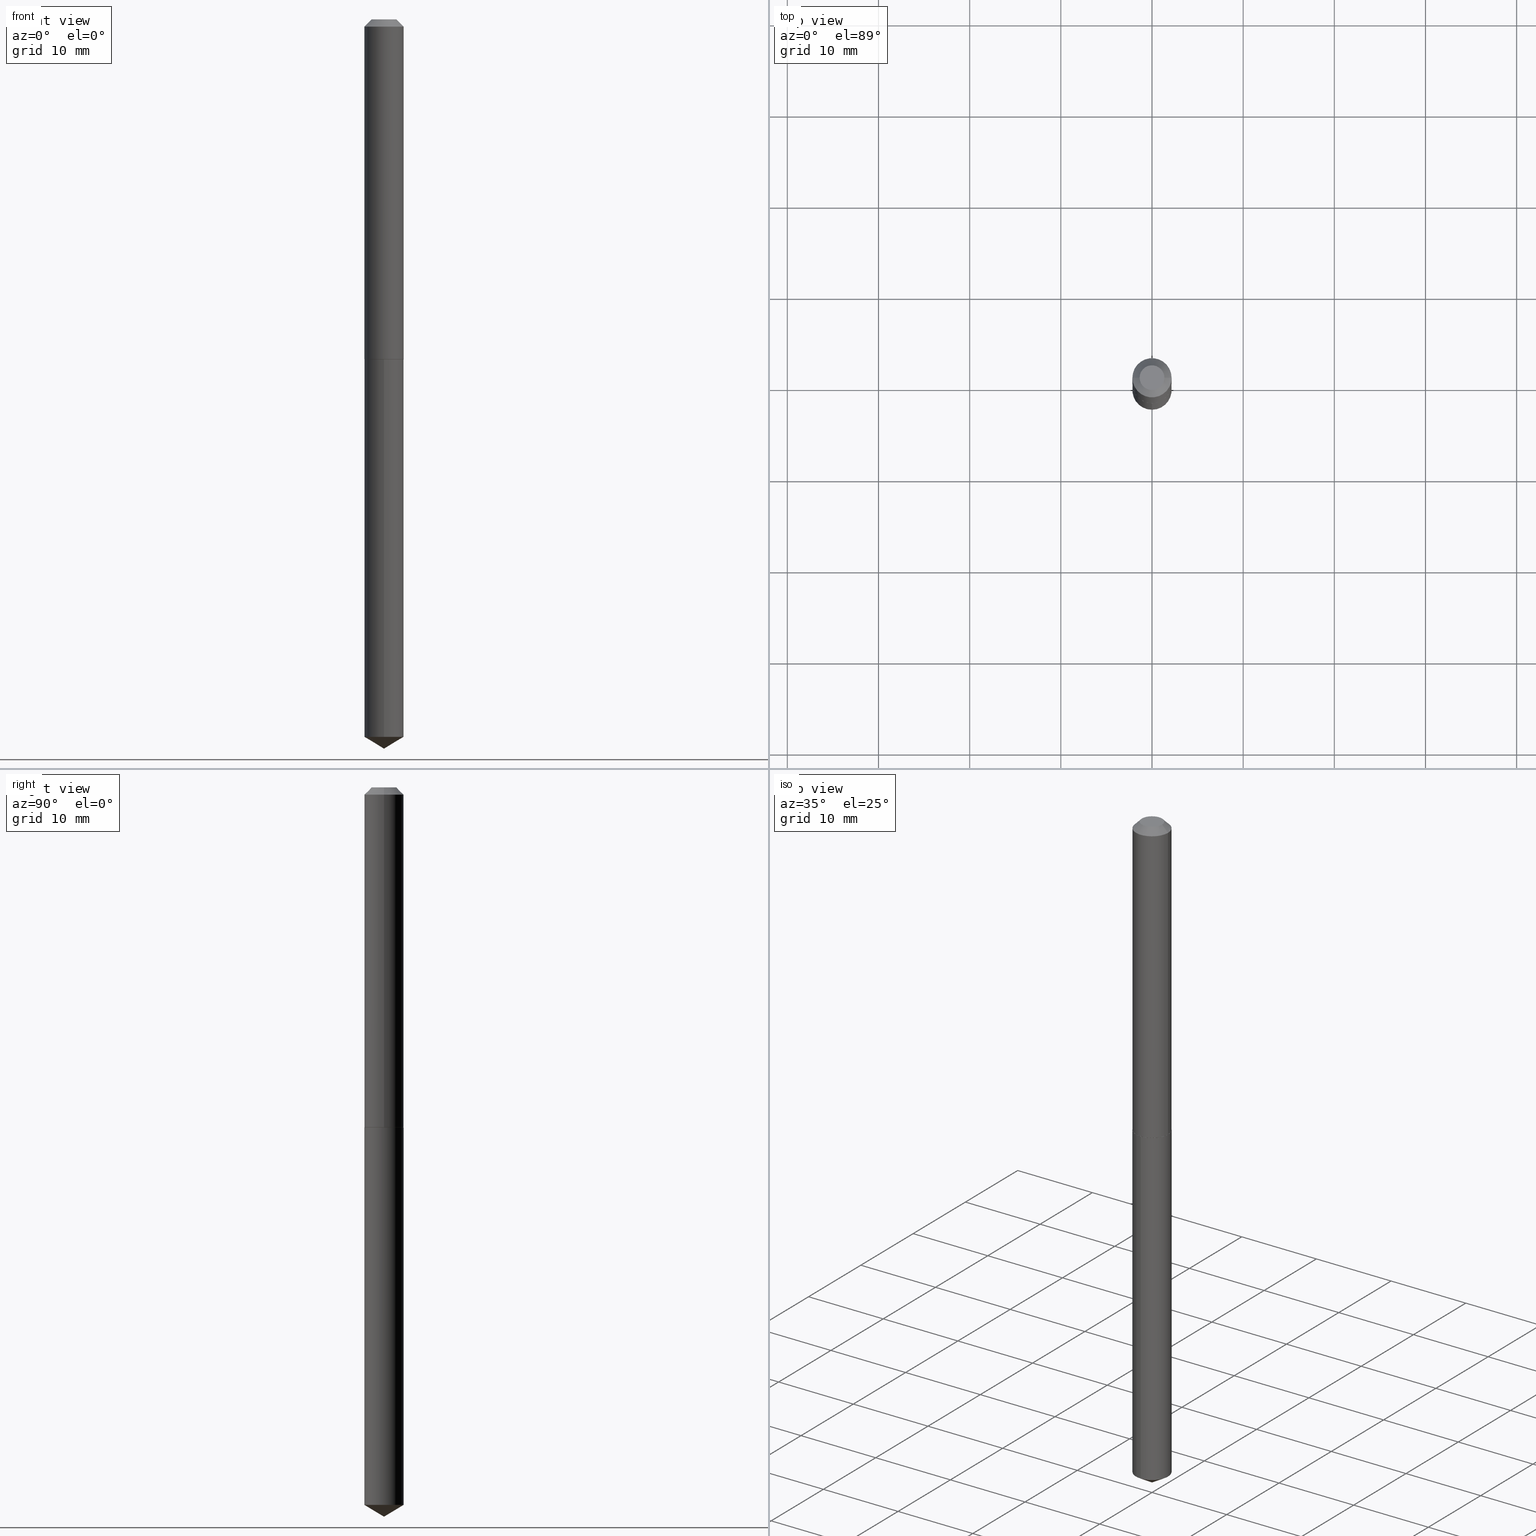
[diagram: canonical four-view strip — front | top / right | iso, engineering-drawing reading convention]
A machine part, canonical four-view strip (front | top / right | iso — engineering-drawing reading convention). The complete STEP part file that produces these views, byte-faithful:
ISO-10303-21;
HEADER;
FILE_DESCRIPTION (( 'STEP AP203' ),
    '1' );
FILE_NAME ('68320.STEP',
    '2024-04-23T13:05:01',
    ( '' ),
    ( '' ),
    'SwSTEP 2.0',
    'SolidWorks 2023',
    '' );
FILE_SCHEMA (( 'CONFIG_CONTROL_DESIGN' ));
ENDSEC;

DATA;
#1 = DATE_AND_TIME ( #124, #12 ) ;
#2 = ORIENTED_EDGE ( 'NONE', *, *, #281, .T. ) ;
#3 = APPROVAL_STATUS ( 'not_yet_approved' ) ;
#4 = ADVANCED_FACE ( 'NONE', ( #5 ), #241, .F. ) ;
#5 = FACE_OUTER_BOUND ( 'NONE', #39, .T. ) ;
#6 = PRODUCT_DEFINITION_SHAPE ( 'NONE', 'NONE',  #383 ) ;
#7 = ORIENTED_EDGE ( 'NONE', *, *, #226, .F. ) ;
#8 = DIRECTION ( 'NONE',  ( 2.438088387897960049E-29, -3.491481338843145188E-15, -1.000000000000000000 ) ) ;
#9 = DIRECTION ( 'NONE',  ( 2.445467556572017925E-29, -3.491483128360254707E-15, -1.000000000000000000 ) ) ;
#10 = CYLINDRICAL_SURFACE ( 'NONE', #354, 0.08465000000000011404 ) ;
#11 = AXIS2_PLACEMENT_3D ( 'NONE', #224, #194, #311 ) ;
#12 = LOCAL_TIME ( 9, 5, 1.000000000000000000, #268 ) ;
#13 = APPROVAL_ROLE ( '' ) ;
#14 = DIRECTION ( 'NONE',  ( 1.000000000000000000, -6.982962677686266711E-15, 0.000000000000000000 ) ) ;
#15 = DIRECTION ( 'NONE',  ( -2.445468806185136597E-29, 3.491481338843145583E-15, 1.000000000000000000 ) ) ;
#16 = EDGE_CURVE ( 'NONE', #93, #23, #86, .T. ) ;
#17 = DIRECTION ( 'NONE',  ( -2.445468806185136597E-29, 3.491481338843145583E-15, 1.000000000000000000 ) ) ;
#18 = APPROVAL_PERSON_ORGANIZATION ( #146, #38, #316 ) ;
#19 = DIRECTION ( 'NONE',  ( -6.982962677686265922E-15, -1.000000000000000000, 3.227227399485248397E-15 ) ) ;
#20 = EDGE_CURVE ( 'NONE', #183, #112, #276, .T. ) ;
#21 = DIRECTION ( 'NONE',  ( 1.000000000000000000, -6.982962677686266711E-15, 4.876167854615105113E-29 ) ) ;
#22 = LINE ( 'NONE', #82, #249 ) ;
#23 = VERTEX_POINT ( 'NONE', #218 ) ;
#24 = AXIS2_PLACEMENT_3D ( 'NONE', #80, #280, #310 ) ;
#25 = CARTESIAN_POINT ( 'NONE',  ( 7.642090019328602662E-31, -1.091087918388490267E-16, -0.03125000000000020817 ) ) ;
#26 = EDGE_LOOP ( 'NONE', ( #177, #110 ) ) ;
#27 = PERSON_AND_ORGANIZATION ( #168, #191 ) ;
#28 = EDGE_CURVE ( 'NONE', #232, #60, #148, .T. ) ;
#29 = ORIENTED_EDGE ( 'NONE', *, *, #20, .F. ) ;
#30 =( NAMED_UNIT ( * ) PLANE_ANGLE_UNIT ( ) SI_UNIT ( $, .RADIAN. ) );
#31 = ORIENTED_EDGE ( 'NONE', *, *, #48, .T. ) ;
#32 = ADVANCED_FACE ( 'NONE', ( #95 ), #303, .T. ) ;
#33 = AXIS2_PLACEMENT_3D ( 'NONE', #100, #273, #222 ) ;
#34 = LOCAL_TIME ( 9, 5, 1.000000000000000000, #35 ) ;
#35 = COORDINATED_UNIVERSAL_TIME_OFFSET ( 5, 0, .BEHIND. ) ;
#36 = EDGE_LOOP ( 'NONE', ( #153, #92, #175 ) ) ;
#37 = EDGE_LOOP ( 'NONE', ( #307, #353, #345, #267 ) ) ;
#38 = APPROVAL ( #109, 'UNSPECIFIED' ) ;
#39 = EDGE_LOOP ( 'NONE', ( #69, #90 ) ) ;
#40 = CLOSED_SHELL ( 'NONE', ( #32, #314, #262, #287, #89 ) ) ;
#41 = AXIS2_PLACEMENT_3D ( 'NONE', #369, #329, #59 ) ;
#42 = FACE_OUTER_BOUND ( 'NONE', #67, .T. ) ;
#43 = DIRECTION ( 'NONE',  ( 1.000000000000000000, -6.982962677686266711E-15, 0.000000000000000000 ) ) ;
#44 = DIRECTION ( 'NONE',  ( -2.445468806185136597E-29, 3.491481338843145583E-15, 1.000000000000000000 ) ) ;
#45 = CARTESIAN_POINT ( 'NONE',  ( -0.08415000000000039115, -4.526669406774923587E-15, -1.468500000000000361 ) ) ;
#46 = VECTOR ( 'NONE', #252, 39.37007874015748143 ) ;
#47 = CALENDAR_DATE ( 2024, 23, 4 ) ;
#48 = EDGE_CURVE ( 'NONE', #60, #232, #103, .T. ) ;
#49 = CARTESIAN_POINT ( 'NONE',  ( 3.591170941882874097E-29, -5.127240346091160296E-15, -1.468500000000000361 ) ) ;
#50 = CARTESIAN_POINT ( 'NONE',  ( -0.08465000000000018343, -4.524020179600813175E-15, -1.468000000000000194 ) ) ;
#51 = CC_DESIGN_DATE_AND_TIME_ASSIGNMENT ( #368, #366, ( #213 ) ) ;
#52 = FACE_OUTER_BOUND ( 'NONE', #323, .T. ) ;
#53 = CIRCLE ( 'NONE', #11, 0.08465000000000001690 ) ;
#54 = DIRECTION ( 'NONE',  ( -2.445467556572018485E-29, 3.491483128360254312E-15, 1.000000000000000000 ) ) ;
#55 = DIRECTION ( 'NONE',  ( -2.445468806185136597E-29, 3.491481338843145583E-15, 1.000000000000000000 ) ) ;
#56 = MANIFOLD_SOLID_BREP ( 'Body-Move/Copy2[2]', #370 ) ;
#57 = LINE ( 'NONE', #171, #46 ) ;
#58 = CC_DESIGN_SECURITY_CLASSIFICATION ( #213, ( #134 ) ) ;
#59 = DIRECTION ( 'NONE',  ( 1.000000000000000000, -6.982962677686266711E-15, 0.000000000000000000 ) ) ;
#60 = VERTEX_POINT ( 'NONE', #98 ) ;
#61 = PERSON_AND_ORGANIZATION_ROLE ( 'creator' ) ;
#62 = ORIENTED_EDGE ( 'NONE', *, *, #362, .F. ) ;
#63 = ORIENTED_EDGE ( 'NONE', *, *, #182, .T. ) ;
#64 = AXIS2_PLACEMENT_3D ( 'NONE', #360, #15, #156 ) ;
#65 = AXIS2_PLACEMENT_3D ( 'NONE', #25, #344, #202 ) ;
#66 = LINE ( 'NONE', #210, #166 ) ;
#67 = EDGE_LOOP ( 'NONE', ( #299, #352, #234, #180 ) ) ;
#68 = ADVANCED_FACE ( 'NONE', ( #189 ), #10, .T. ) ;
#69 = ORIENTED_EDGE ( 'NONE', *, *, #145, .F. ) ;
#70 = DIRECTION ( 'NONE',  ( 1.000000000000000000, -6.982962677686266711E-15, 0.000000000000000000 ) ) ;
#71 = EDGE_CURVE ( 'NONE', #211, #232, #277, .T. ) ;
#72 = CARTESIAN_POINT ( 'NONE',  ( 7.642090019328602662E-31, -1.091087918388490267E-16, -0.03125000000000020817 ) ) ;
#73 = DIRECTION ( 'NONE',  ( 1.000000000000000000, -6.982962677686266711E-15, 4.876176775795935232E-29 ) ) ;
#74 = CARTESIAN_POINT ( 'NONE',  ( 3.591170941882873536E-29, -5.127240346091159508E-15, -1.468500000000000139 ) ) ;
#75 = CARTESIAN_POINT ( 'NONE',  ( 0.08465000000000018343, -5.716602396087882778E-15, -1.468000000000000194 ) ) ;
#76 = AXIS2_PLACEMENT_3D ( 'NONE', #74, #9, #128 ) ;
#77 = AXIS2_PLACEMENT_3D ( 'NONE', #306, #133, #81 ) ;
#78 = LINE ( 'NONE', #163, #341 ) ;
#79 = EDGE_CURVE ( 'NONE', #83, #183, #309, .T. ) ;
#80 = CARTESIAN_POINT ( 'NONE',  ( 3.591170941882873536E-29, -5.127240346091159508E-15, -1.468500000000000139 ) ) ;
#81 = DIRECTION ( 'NONE',  ( -6.982962677686266711E-15, -1.000000000000000000, 3.468864327941613936E-15 ) ) ;
#82 = CARTESIAN_POINT ( 'NONE',  ( 6.014744258209607220E-16, 0.08464999999999488212, -1.468500000000000361 ) ) ;
#83 = VERTEX_POINT ( 'NONE', #216 ) ;
#84 = CARTESIAN_POINT ( 'NONE',  ( -5.839929314523221596E-48, 8.337871319499149181E-34, 2.388061258337353400E-19 ) ) ;
#85 = ORIENTED_EDGE ( 'NONE', *, *, #16, .T. ) ;
#86 = CIRCLE ( 'NONE', #64, 0.05340000000000000996 ) ;
#87 =( LENGTH_UNIT ( ) NAMED_UNIT ( * ) SI_UNIT ( $, .METRE. ) );
#88 = VERTEX_POINT ( 'NONE', #45 ) ;
#89 = ADVANCED_FACE ( 'NONE', ( #331 ), #274, .F. ) ;
#90 = ORIENTED_EDGE ( 'NONE', *, *, #174, .F. ) ;
#91 = LENGTH_MEASURE_WITH_UNIT ( LENGTH_MEASURE( 0.02539999999999999897 ), #87 );
#92 = ORIENTED_EDGE ( 'NONE', *, *, #200, .T. ) ;
#93 = VERTEX_POINT ( 'NONE', #327 ) ;
#94 = DIRECTION ( 'NONE',  ( -2.445467556572018485E-29, 3.491483128360254312E-15, 1.000000000000000000 ) ) ;
#95 = FACE_OUTER_BOUND ( 'NONE', #317, .T. ) ;
#96 = AXIS2_PLACEMENT_3D ( 'NONE', #221, #184, #14 ) ;
#97 = CARTESIAN_POINT ( 'NONE',  ( 0.000000000000000000, 0.000000000000000000, 0.000000000000000000 ) ) ;
#98 = CARTESIAN_POINT ( 'NONE',  ( -0.08465000000000003078, -2.015827272809367540E-15, -0.03125000000000020817 ) ) ;
#99 = SHAPE_DEFINITION_REPRESENTATION ( #6, #320 ) ;
#100 = CARTESIAN_POINT ( 'NONE',  ( 3.591170941882874097E-29, -5.127240346091160296E-15, -1.468500000000000361 ) ) ;
#101 = CC_DESIGN_DATE_AND_TIME_ASSIGNMENT ( #208, #141, ( #383 ) ) ;
#102 = FACE_OUTER_BOUND ( 'NONE', #36, .T. ) ;
#103 = CIRCLE ( 'NONE', #96, 0.08465000000000003078 ) ;
#104 = CYLINDRICAL_SURFACE ( 'NONE', #334, 0.08465000000000001690 ) ;
#105 = DIRECTION ( 'NONE',  ( -2.445467556572018485E-29, 3.491483128360254707E-15, 1.000000000000000000 ) ) ;
#106 = CARTESIAN_POINT ( 'NONE',  ( -0.08465000000000003078, 4.819989988272936028E-16, -0.03125000000000020817 ) ) ;
#107 = VECTOR ( 'NONE', #123, 39.37007874015748854 ) ;
#108 = FACE_OUTER_BOUND ( 'NONE', #272, .T. ) ;
#109 = APPROVAL_STATUS ( 'not_yet_approved' ) ;
#110 = ORIENTED_EDGE ( 'NONE', *, *, #240, .T. ) ;
#111 = DATE_AND_TIME ( #238, #34 ) ;
#112 = VERTEX_POINT ( 'NONE', #125 ) ;
#113 = AXIS2_PLACEMENT_3D ( 'NONE', #49, #44, #358 ) ;
#114 = CIRCLE ( 'NONE', #41, 0.08465000000000018343 ) ;
#115 = ADVANCED_FACE ( 'NONE', ( #132 ), #160, .F. ) ;
#116 = PERSON_AND_ORGANIZATION_ROLE ( 'classification_officer' ) ;
#117 = ORIENTED_EDGE ( 'NONE', *, *, #281, .F. ) ;
#118 = PERSON_AND_ORGANIZATION_ROLE ( 'creator' ) ;
#119 = ORIENTED_EDGE ( 'NONE', *, *, #28, .T. ) ;
#120 = EDGE_LOOP ( 'NONE', ( #2, #85 ) ) ;
#121 = CIRCLE ( 'NONE', #348, 0.08465000000000018343 ) ;
#122 = ORIENTED_EDGE ( 'NONE', *, *, #48, .F. ) ;
#123 = DIRECTION ( 'NONE',  ( 6.090539988449770547E-15, 0.8571673007021127777, 0.5150380749100531563 ) ) ;
#124 = CALENDAR_DATE ( 2024, 23, 4 ) ;
#125 = CARTESIAN_POINT ( 'NONE',  ( -5.911077906661066131E-16, -0.08465000000000513780, -1.468499999999999917 ) ) ;
#126 = EDGE_CURVE ( 'NONE', #239, #211, #251, .T. ) ;
#127 = AXIS2_PLACEMENT_3D ( 'NONE', #201, #256, #313 ) ;
#128 = DIRECTION ( 'NONE',  ( 6.982962677686265922E-15, 1.000000000000000000, -3.491483128360254707E-15 ) ) ;
#129 = DATE_AND_TIME ( #47, #199 ) ;
#130 = DIRECTION ( 'NONE',  ( -1.000000000000000000, 6.982962677686265922E-15, -4.876176775795935793E-29 ) ) ;
#131 = PERSON_AND_ORGANIZATION ( #168, #191 ) ;
#132 = FACE_OUTER_BOUND ( 'NONE', #120, .T. ) ;
#133 = DIRECTION ( 'NONE',  ( -2.445467556572018485E-29, 3.491483128360254312E-15, 1.000000000000000000 ) ) ;
#134 = PRODUCT_DEFINITION_FORMATION_WITH_SPECIFIED_SOURCE ( 'ANY', '', #215, .NOT_KNOWN. ) ;
#135 = FACE_OUTER_BOUND ( 'NONE', #375, .T. ) ;
#136 = DIRECTION ( 'NONE',  ( -2.445467556572018485E-29, 3.491483128360254312E-15, 1.000000000000000000 ) ) ;
#137 = CARTESIAN_POINT ( 'NONE',  ( 0.08465000000000018343, -5.716602396087882778E-15, -1.468000000000000194 ) ) ;
#138 = VECTOR ( 'NONE', #337, 39.37007874015748854 ) ;
#139 = ORIENTED_EDGE ( 'NONE', *, *, #126, .F. ) ;
#140 = CONICAL_SURFACE ( 'NONE', #127, 65.52281426576806211, 1.029744258676652091 ) ;
#141 = DATE_TIME_ROLE ( 'creation_date' ) ;
#142 = CC_DESIGN_PERSON_AND_ORGANIZATION_ASSIGNMENT ( #349, #61, ( #134 ) ) ;
#143 = APPROVAL_DATE_TIME ( #111, #38 ) ;
#144 = ORIENTED_EDGE ( 'NONE', *, *, #347, .F. ) ;
#145 = EDGE_CURVE ( 'NONE', #239, #88, #333, .T. ) ;
#146 = PERSON_AND_ORGANIZATION ( #168, #191 ) ;
#147 = ORIENTED_EDGE ( 'NONE', *, *, #71, .T. ) ;
#148 = CIRCLE ( 'NONE', #295, 0.08465000000000003078 ) ;
#149 = CC_DESIGN_APPROVAL ( #38, ( #134 ) ) ;
#150 = PERSON_AND_ORGANIZATION ( #168, #191 ) ;
#151 = EDGE_LOOP ( 'NONE', ( #390, #152, #119, #144 ) ) ;
#152 = ORIENTED_EDGE ( 'NONE', *, *, #376, .T. ) ;
#153 = ORIENTED_EDGE ( 'NONE', *, *, #182, .F. ) ;
#154 = AXIS2_PLACEMENT_3D ( 'NONE', #302, #8, #130 ) ;
#155 = AXIS2_PLACEMENT_3D ( 'NONE', #384, #361, #297 ) ;
#156 = DIRECTION ( 'NONE',  ( 1.000000000000000000, -6.982962677686266711E-15, 4.876167854615105113E-29 ) ) ;
#157 = DIRECTION ( 'NONE',  ( -2.445468806185136877E-29, 3.491481338843145188E-15, 1.000000000000000000 ) ) ;
#158 = ADVANCED_FACE ( 'NONE', ( #42 ), #185, .T. ) ;
#159 = APPROVAL_DATE_TIME ( #129, #173 ) ;
#160 = PLANE ( 'NONE',  #154 ) ;
#161 = DIRECTION ( 'NONE',  ( -2.445468806185136597E-29, 3.491481338843145583E-15, 1.000000000000000000 ) ) ;
#162 = CARTESIAN_POINT ( 'NONE',  ( 7.702248318475522533E-29, -1.099677000527170954E-14, -3.149600000000000399 ) ) ;
#163 = CARTESIAN_POINT ( 'NONE',  ( -0.08465000000000018343, -4.524020179600813175E-15, -1.468000000000000194 ) ) ;
#164 = AXIS2_PLACEMENT_3D ( 'NONE', #190, #161, #70 ) ;
#165 = DIRECTION ( 'NONE',  ( -2.445468806185136597E-29, 3.491481338843145583E-15, 1.000000000000000000 ) ) ;
#166 = VECTOR ( 'NONE', #204, 39.37007874015748143 ) ;
#167 = DIRECTION ( 'NONE',  ( 1.000000000000000000, -6.982962677686266711E-15, 0.000000000000000000 ) ) ;
#168 = PERSON ( 'UNSPECIFIED', 'UNSPECIFIED', 'UNSPECIFIED', ('UNSPECIFIED'), ('UNSPECIFIED'), ('UNSPECIFIED') ) ;
#169 = ADVANCED_FACE ( 'NONE', ( #250 ), #242, .T. ) ;
#170 = CARTESIAN_POINT ( 'NONE',  ( 0.08415000000000039115, -5.714856655418462852E-15, -1.468500000000000361 ) ) ;
#171 = CARTESIAN_POINT ( 'NONE',  ( -0.08465000000000011404, 6.014744258209256177E-16, -4.163878553900783461E-30 ) ) ;
#172 = CIRCLE ( 'NONE', #24, 0.08465000000000001690 ) ;
#173 = APPROVAL ( #377, 'UNSPECIFIED' ) ;
#174 = EDGE_CURVE ( 'NONE', #88, #239, #328, .T. ) ;
#175 = ORIENTED_EDGE ( 'NONE', *, *, #79, .F. ) ;
#176 = PERSON_AND_ORGANIZATION_ROLE ( 'design_supplier' ) ;
#177 = ORIENTED_EDGE ( 'NONE', *, *, #226, .T. ) ;
#178 = ORIENTED_EDGE ( 'NONE', *, *, #193, .T. ) ;
#179 = AXIS2_PLACEMENT_3D ( 'NONE', #308, #54, #227 ) ;
#180 = ORIENTED_EDGE ( 'NONE', *, *, #336, .F. ) ;
#181 = MANIFOLD_SOLID_BREP ( 'Body-Move/Copy2[1]', #40 ) ;
#182 = EDGE_CURVE ( 'NONE', #298, #83, #192, .T. ) ;
#183 = VERTEX_POINT ( 'NONE', #254 ) ;
#184 = DIRECTION ( 'NONE',  ( -2.445468806185136597E-29, 3.491481338843145583E-15, 1.000000000000000000 ) ) ;
#185 = CONICAL_SURFACE ( 'NONE', #164, 0.08465000000000018343, 0.7853981633970726906 ) ;
#186 = DIRECTION ( 'NONE',  ( -2.445467556572018485E-29, 3.491483128360254312E-15, 1.000000000000000000 ) ) ;
#187 = ADVANCED_FACE ( 'NONE', ( #135 ), #248, .T. ) ;
#188 = APPROVAL_ROLE ( '' ) ;
#189 = FACE_OUTER_BOUND ( 'NONE', #264, .T. ) ;
#190 = CARTESIAN_POINT ( 'NONE',  ( 3.589948207479781295E-29, -5.125494605421738793E-15, -1.468000000000000194 ) ) ;
#191 = ORGANIZATION ( 'UNSPECIFIED', 'UNSPECIFIED', '' ) ;
#192 = LINE ( 'NONE', #162, #107 ) ;
#193 = EDGE_CURVE ( 'NONE', #88, #244, #78, .T. ) ;
#194 = DIRECTION ( 'NONE',  ( -2.445467556572018485E-29, 3.491483128360254312E-15, 1.000000000000000000 ) ) ;
#195 = ORIENTED_EDGE ( 'NONE', *, *, #325, .T. ) ;
#196 = CARTESIAN_POINT ( 'NONE',  ( 7.702244616179229741E-29, -1.099677526108345830E-14, -3.149600000000000399 ) ) ;
#197 = AXIS2_PLACEMENT_3D ( 'NONE', #365, #326, #367 ) ;
#198 = CARTESIAN_POINT ( 'NONE',  ( 3.589948207479781295E-29, -5.125494605421738793E-15, -1.468000000000000194 ) ) ;
#199 = LOCAL_TIME ( 9, 5, 1.000000000000000000, #373 ) ;
#200 = EDGE_CURVE ( 'NONE', #298, #183, #257, .T. ) ;
#201 = CARTESIAN_POINT ( 'NONE',  ( -8.857600380750479720E-28, 1.264631930502970118E-13, 36.22047874015748192 ) ) ;
#202 = DIRECTION ( 'NONE',  ( -1.000000000000000000, 6.982962677686266711E-15, 0.000000000000000000 ) ) ;
#203 = PRODUCT_RELATED_PRODUCT_CATEGORY ( 'detail', '', ( #215 ) ) ;
#204 = DIRECTION ( 'NONE',  ( 0.7071067811865453523, -7.319954787623248157E-15, -0.7071067811865496822 ) ) ;
#205 = VECTOR ( 'NONE', #220, 39.37007874015748854 ) ;
#206 = ORIENTED_EDGE ( 'NONE', *, *, #371, .T. ) ;
#207 = LOCAL_TIME ( 9, 5, 1.000000000000000000, #246 ) ;
#208 = DATE_AND_TIME ( #233, #207 ) ;
#209 = ORIENTED_EDGE ( 'NONE', *, *, #145, .T. ) ;
#210 = CARTESIAN_POINT ( 'NONE',  ( 0.08465000000000003078, -6.898499473502093829E-16, -0.03125000000000020817 ) ) ;
#211 = VERTEX_POINT ( 'NONE', #137 ) ;
#212 = ORIENTED_EDGE ( 'NONE', *, *, #371, .F. ) ;
#213 = SECURITY_CLASSIFICATION ( '', '', #291 ) ;
#214 = DIRECTION ( 'NONE',  ( -2.438088387897960049E-29, 3.491481338843145188E-15, 1.000000000000000000 ) ) ;
#215 = PRODUCT ( '68320', '68320', '', ( #322 ) ) ;
#216 = CARTESIAN_POINT ( 'NONE',  ( 6.014744258210007567E-16, 0.08464999999998920610, -3.098737148599317592 ) ) ;
#217 = EDGE_CURVE ( 'NONE', #183, #83, #380, .T. ) ;
#218 = CARTESIAN_POINT ( 'NONE',  ( -0.05340000000000000996, 4.274446029078701372E-16, 2.388061258309370119E-19 ) ) ;
#219 = APPROVAL_PERSON_ORGANIZATION ( #265, #278, #188 ) ;
#220 = DIRECTION ( 'NONE',  ( 0.7071067811862817853, -2.468850131079474354E-15, 0.7071067811868130271 ) ) ;
#221 = CARTESIAN_POINT ( 'NONE',  ( 7.642090019328602662E-31, -1.091087918388490267E-16, -0.03125000000000020817 ) ) ;
#222 = DIRECTION ( 'NONE',  ( 1.000000000000000000, -6.982962677686266711E-15, 0.000000000000000000 ) ) ;
#223 = APPROVAL_PERSON_ORGANIZATION ( #131, #173, #13 ) ;
#224 = CARTESIAN_POINT ( 'NONE',  ( 3.591170941882873536E-29, -5.127240346091159508E-15, -1.468500000000000139 ) ) ;
#225 = CARTESIAN_POINT ( 'NONE',  ( 3.591170941882873536E-29, -5.127240346091159508E-15, -1.468500000000000139 ) ) ;
#226 = EDGE_CURVE ( 'NONE', #112, #321, #53, .T. ) ;
#227 = DIRECTION ( 'NONE',  ( -6.982962677686265922E-15, -1.000000000000000000, 6.454454798970496795E-15 ) ) ;
#228 = DIRECTION ( 'NONE',  ( -0.7071067811865453523, 2.468850131082234184E-15, -0.7071067811865496822 ) ) ;
#229 = CC_DESIGN_APPROVAL ( #173, ( #213 ) ) ;
#230 = FACE_OUTER_BOUND ( 'NONE', #237, .T. ) ;
#231 = APPROVAL_DATE_TIME ( #1, #278 ) ;
#232 = VERTEX_POINT ( 'NONE', #382 ) ;
#233 = CALENDAR_DATE ( 2024, 23, 4 ) ;
#234 = ORIENTED_EDGE ( 'NONE', *, *, #126, .T. ) ;
#235 = COORDINATED_UNIVERSAL_TIME_OFFSET ( 5, 0, .BEHIND. ) ;
#236 = DIMENSIONAL_EXPONENTS ( 1.000000000000000000, 0.000000000000000000, 0.000000000000000000, 0.000000000000000000, 0.000000000000000000, 0.000000000000000000, 0.000000000000000000 ) ;
#237 = EDGE_LOOP ( 'NONE', ( #387, #117, #296, #31 ) ) ;
#238 = CALENDAR_DATE ( 2024, 23, 4 ) ;
#239 = VERTEX_POINT ( 'NONE', #170 ) ;
#240 = EDGE_CURVE ( 'NONE', #321, #112, #172, .T. ) ;
#241 = PLANE ( 'NONE',  #346 ) ;
#242 = CONICAL_SURFACE ( 'NONE', #197, 0.08465000000000003078, 0.7853981633974452814 ) ;
#243 = AXIS2_PLACEMENT_3D ( 'NONE', #84, #374, #21 ) ;
#244 = VERTEX_POINT ( 'NONE', #50 ) ;
#245 = DIRECTION ( 'NONE',  ( -6.982962677686265922E-15, -1.000000000000000000, 3.227227399485248397E-15 ) ) ;
#246 = COORDINATED_UNIVERSAL_TIME_OFFSET ( 5, 0, .BEHIND. ) ;
#247 = DIRECTION ( 'NONE',  ( -2.445467556572018485E-29, 3.491483128360254707E-15, 1.000000000000000000 ) ) ;
#248 = CONICAL_SURFACE ( 'NONE', #286, 0.08465000000000018343, 0.7853981633970726906 ) ;
#249 = VECTOR ( 'NONE', #105, 39.37007874015748143 ) ;
#250 = FACE_OUTER_BOUND ( 'NONE', #151, .T. ) ;
#251 = LINE ( 'NONE', #75, #205 ) ;
#252 = DIRECTION ( 'NONE',  ( -2.445468806185136877E-29, 3.491481338843145188E-15, 1.000000000000000000 ) ) ;
#253 = AXIS2_PLACEMENT_3D ( 'NONE', #305, #186, #301 ) ;
#254 = CARTESIAN_POINT ( 'NONE',  ( -5.911077906660666770E-16, -0.08465000000001084157, -3.098737148599316260 ) ) ;
#255 = ADVANCED_FACE ( 'NONE', ( #108 ), #284, .T. ) ;
#256 = DIRECTION ( 'NONE',  ( -2.445467556572018485E-29, 3.491483128360254312E-15, 1.000000000000000000 ) ) ;
#257 = LINE ( 'NONE', #283, #138 ) ;
#258 = VECTOR ( 'NONE', #247, 39.37007874015748143 ) ;
#259 = DIRECTION ( 'NONE',  ( 1.000000000000000000, -6.982962677686266711E-15, 0.000000000000000000 ) ) ;
#260 = CC_DESIGN_APPROVAL ( #278, ( #383 ) ) ;
#261 =( CONVERSION_BASED_UNIT ( 'INCH', #91 ) LENGTH_UNIT ( ) NAMED_UNIT ( #236 ) );
#262 = ADVANCED_FACE ( 'NONE', ( #102 ), #304, .T. ) ;
#263 = PERSON_AND_ORGANIZATION ( #168, #191 ) ;
#264 = EDGE_LOOP ( 'NONE', ( #206, #290, #292, #385 ) ) ;
#265 = PERSON_AND_ORGANIZATION ( #168, #191 ) ;
#266 = CIRCLE ( 'NONE', #243, 0.05340000000000000996 ) ;
#267 = ORIENTED_EDGE ( 'NONE', *, *, #240, .F. ) ;
#268 = COORDINATED_UNIVERSAL_TIME_OFFSET ( 5, 0, .BEHIND. ) ;
#269 = ORIENTED_EDGE ( 'NONE', *, *, #336, .T. ) ;
#270 = APPLICATION_PROTOCOL_DEFINITION ( 'international standard', 'config_control_design', 1994, #338 ) ;
#271 = ORIENTED_EDGE ( 'NONE', *, *, #217, .F. ) ;
#272 = EDGE_LOOP ( 'NONE', ( #62, #269, #147, #122 ) ) ;
#273 = DIRECTION ( 'NONE',  ( -2.445468806185136597E-29, 3.491481338843145583E-15, 1.000000000000000000 ) ) ;
#274 = PLANE ( 'NONE',  #76 ) ;
#275 = CC_DESIGN_PERSON_AND_ORGANIZATION_ASSIGNMENT ( #27, #118, ( #383 ) ) ;
#276 = LINE ( 'NONE', #279, #258 ) ;
#277 = LINE ( 'NONE', #332, #315 ) ;
#278 = APPROVAL ( #3, 'UNSPECIFIED' ) ;
#279 = CARTESIAN_POINT ( 'NONE',  ( -5.911077906661066131E-16, -0.08465000000000513780, -1.468499999999999917 ) ) ;
#280 = DIRECTION ( 'NONE',  ( -2.445467556572018485E-29, 3.491483128360254312E-15, 1.000000000000000000 ) ) ;
#281 = EDGE_CURVE ( 'NONE', #23, #93, #266, .T. ) ;
#282 = VECTOR ( 'NONE', #228, 39.37007874015748143 ) ;
#283 = CARTESIAN_POINT ( 'NONE',  ( 7.702244616179229741E-29, -1.099677526108345830E-14, -3.149600000000000399 ) ) ;
#284 = CYLINDRICAL_SURFACE ( 'NONE', #372, 0.08465000000000011404 ) ;
#285 = DIRECTION ( 'NONE',  ( 1.000000000000000000, -6.982962677686266711E-15, 4.876176775795935232E-29 ) ) ;
#286 = AXIS2_PLACEMENT_3D ( 'NONE', #343, #165, #167 ) ;
#287 = ADVANCED_FACE ( 'NONE', ( #378 ), #104, .T. ) ;
#288 = LINE ( 'NONE', #106, #282 ) ;
#289 = PERSON_AND_ORGANIZATION_ROLE ( 'design_owner' ) ;
#290 = ORIENTED_EDGE ( 'NONE', *, *, #362, .T. ) ;
#291 = SECURITY_CLASSIFICATION_LEVEL ( 'unclassified' ) ;
#292 = ORIENTED_EDGE ( 'NONE', *, *, #28, .F. ) ;
#293 = UNCERTAINTY_MEASURE_WITH_UNIT (LENGTH_MEASURE( 1.000000000000000082E-05 ), #261, 'distance_accuracy_value', 'NONE');
#294 = PERSON_AND_ORGANIZATION ( #168, #191 ) ;
#295 = AXIS2_PLACEMENT_3D ( 'NONE', #72, #330, #43 ) ;
#296 = ORIENTED_EDGE ( 'NONE', *, *, #347, .T. ) ;
#297 = DIRECTION ( 'NONE',  ( 1.000000000000000000, 0.000000000000000000, 0.000000000000000000 ) ) ;
#298 = VERTEX_POINT ( 'NONE', #196 ) ;
#299 = ORIENTED_EDGE ( 'NONE', *, *, #193, .F. ) ;
#300 = DIRECTION ( 'NONE',  ( -2.445468806185136597E-29, 3.491481338843145583E-15, 1.000000000000000000 ) ) ;
#301 = DIRECTION ( 'NONE',  ( -6.982962677686265922E-15, -1.000000000000000000, 6.454454798970496795E-15 ) ) ;
#302 = CARTESIAN_POINT ( 'NONE',  ( -2.919964657261610798E-48, 4.168935659749574591E-34, 1.194030629168676700E-19 ) ) ;
#303 = CYLINDRICAL_SURFACE ( 'NONE', #364, 0.08465000000000001690 ) ;
#304 = CONICAL_SURFACE ( 'NONE', #77, 65.52281426576806211, 1.029744258676652091 ) ;
#305 = CARTESIAN_POINT ( 'NONE',  ( 7.577862998300978818E-29, -1.081918584565180318E-14, -3.098737148599316704 ) ) ;
#306 = CARTESIAN_POINT ( 'NONE',  ( -8.857600380750479720E-28, 1.264631930502970118E-13, 36.22047874015748192 ) ) ;
#307 = ORIENTED_EDGE ( 'NONE', *, *, #325, .F. ) ;
#308 = CARTESIAN_POINT ( 'NONE',  ( 7.577862998300978818E-29, -1.081918584565180318E-14, -3.098737148599316704 ) ) ;
#309 = CIRCLE ( 'NONE', #253, 0.08465000000000001690 ) ;
#310 = DIRECTION ( 'NONE',  ( -6.982962677686265922E-15, -1.000000000000000000, 3.227227399485248397E-15 ) ) ;
#311 = DIRECTION ( 'NONE',  ( -6.982962677686265922E-15, -1.000000000000000000, 3.227227399485248397E-15 ) ) ;
#312 = DESIGN_CONTEXT ( 'detailed design', #338, 'design' ) ;
#313 = DIRECTION ( 'NONE',  ( -6.982962677686266711E-15, -1.000000000000000000, 3.468864327941613936E-15 ) ) ;
#314 = ADVANCED_FACE ( 'NONE', ( #52 ), #140, .T. ) ;
#315 = VECTOR ( 'NONE', #157, 39.37007874015748143 ) ;
#316 = APPROVAL_ROLE ( '' ) ;
#317 = EDGE_LOOP ( 'NONE', ( #350, #195, #7, #29 ) ) ;
#318 = ORIENTED_EDGE ( 'NONE', *, *, #200, .F. ) ;
#319 = APPLICATION_CONTEXT ( 'configuration controlled 3d designs of mechanical parts and assemblies' ) ;
#320 = ADVANCED_BREP_SHAPE_REPRESENTATION ( '68320', ( #181, #56, #155 ), #342 ) ;
#321 = VERTEX_POINT ( 'NONE', #379 ) ;
#322 = MECHANICAL_CONTEXT ( 'NONE', #319, 'mechanical' ) ;
#323 = EDGE_LOOP ( 'NONE', ( #318, #63, #271 ) ) ;
#324 = DIRECTION ( 'NONE',  ( 1.000000000000000000, -6.982962677686265922E-15, 4.876176775795935793E-29 ) ) ;
#325 = EDGE_CURVE ( 'NONE', #83, #321, #22, .T. ) ;
#326 = DIRECTION ( 'NONE',  ( 2.445468806185136597E-29, -3.491481338843145583E-15, -1.000000000000000000 ) ) ;
#327 = CARTESIAN_POINT ( 'NONE',  ( 0.05340000000000000996, -5.281002702156046519E-16, 2.388061258368850539E-19 ) ) ;
#328 = CIRCLE ( 'NONE', #33, 0.08415000000000039115 ) ;
#329 = DIRECTION ( 'NONE',  ( -2.445468806185136597E-29, 3.491481338843145583E-15, 1.000000000000000000 ) ) ;
#330 = DIRECTION ( 'NONE',  ( -2.445468806185136597E-29, 3.491481338843145583E-15, 1.000000000000000000 ) ) ;
#331 = FACE_OUTER_BOUND ( 'NONE', #26, .T. ) ;
#332 = CARTESIAN_POINT ( 'NONE',  ( 0.08465000000000011404, -5.911077906661432951E-16, 4.127683640711264817E-30 ) ) ;
#333 = CIRCLE ( 'NONE', #113, 0.08415000000000039115 ) ;
#334 = AXIS2_PLACEMENT_3D ( 'NONE', #225, #136, #19 ) ;
#335 = DIRECTION ( 'NONE',  ( -0.7071067811862817853, 7.493145998869393328E-15, 0.7071067811868130271 ) ) ;
#336 = EDGE_CURVE ( 'NONE', #244, #211, #121, .T. ) ;
#337 = DIRECTION ( 'NONE',  ( -5.985567269335934180E-15, -0.8571673007021091140, 0.5150380749100591515 ) ) ;
#338 = APPLICATION_CONTEXT ( 'configuration controlled 3d designs of mechanical parts and assemblies' ) ;
#339 = CC_DESIGN_PERSON_AND_ORGANIZATION_ASSIGNMENT ( #294, #289, ( #215 ) ) ;
#340 = CARTESIAN_POINT ( 'NONE',  ( 0.000000000000000000, 0.000000000000000000, 0.000000000000000000 ) ) ;
#341 = VECTOR ( 'NONE', #335, 39.37007874015748854 ) ;
#342 =( GEOMETRIC_REPRESENTATION_CONTEXT ( 3 ) GLOBAL_UNCERTAINTY_ASSIGNED_CONTEXT ( ( #293 ) ) GLOBAL_UNIT_ASSIGNED_CONTEXT ( ( #261, #30, #389 ) ) REPRESENTATION_CONTEXT ( 'NONE', 'WORKASPACE' ) );
#343 = CARTESIAN_POINT ( 'NONE',  ( 3.589948207479781295E-29, -5.125494605421738793E-15, -1.468000000000000194 ) ) ;
#344 = DIRECTION ( 'NONE',  ( 2.445468806185136597E-29, -3.491481338843145583E-15, -1.000000000000000000 ) ) ;
#345 = ORIENTED_EDGE ( 'NONE', *, *, #20, .T. ) ;
#346 = AXIS2_PLACEMENT_3D ( 'NONE', #356, #214, #324 ) ;
#347 = EDGE_CURVE ( 'NONE', #23, #60, #288, .T. ) ;
#348 = AXIS2_PLACEMENT_3D ( 'NONE', #198, #55, #259 ) ;
#349 = PERSON_AND_ORGANIZATION ( #168, #191 ) ;
#350 = ORIENTED_EDGE ( 'NONE', *, *, #217, .T. ) ;
#351 = CALENDAR_DATE ( 2024, 23, 4 ) ;
#352 = ORIENTED_EDGE ( 'NONE', *, *, #174, .T. ) ;
#353 = ORIENTED_EDGE ( 'NONE', *, *, #79, .T. ) ;
#354 = AXIS2_PLACEMENT_3D ( 'NONE', #97, #300, #73 ) ;
#355 = CONICAL_SURFACE ( 'NONE', #65, 0.08465000000000003078, 0.7853981633974452814 ) ;
#356 = CARTESIAN_POINT ( 'NONE',  ( 3.591170941882874097E-29, -5.127240346091160296E-15, -1.468500000000000361 ) ) ;
#357 = ADVANCED_FACE ( 'NONE', ( #230 ), #355, .T. ) ;
#358 = DIRECTION ( 'NONE',  ( 1.000000000000000000, -6.982962677686266711E-15, 0.000000000000000000 ) ) ;
#359 = CC_DESIGN_PERSON_AND_ORGANIZATION_ASSIGNMENT ( #150, #116, ( #213 ) ) ;
#360 = CARTESIAN_POINT ( 'NONE',  ( -5.839929314523221596E-48, 8.337871319499149181E-34, 2.388061258337353400E-19 ) ) ;
#361 = DIRECTION ( 'NONE',  ( 0.000000000000000000, 0.000000000000000000, 1.000000000000000000 ) ) ;
#362 = EDGE_CURVE ( 'NONE', #244, #60, #57, .T. ) ;
#363 = CARTESIAN_POINT ( 'NONE',  ( 3.591170941882873536E-29, -5.127240346091159508E-15, -1.468500000000000139 ) ) ;
#364 = AXIS2_PLACEMENT_3D ( 'NONE', #363, #94, #245 ) ;
#365 = CARTESIAN_POINT ( 'NONE',  ( 7.642090019328602662E-31, -1.091087918388490267E-16, -0.03125000000000020817 ) ) ;
#366 = DATE_TIME_ROLE ( 'classification_date' ) ;
#367 = DIRECTION ( 'NONE',  ( -1.000000000000000000, 6.982962677686266711E-15, 0.000000000000000000 ) ) ;
#368 = DATE_AND_TIME ( #351, #381 ) ;
#369 = CARTESIAN_POINT ( 'NONE',  ( 3.589948207479781295E-29, -5.125494605421738793E-15, -1.468000000000000194 ) ) ;
#370 = CLOSED_SHELL ( 'NONE', ( #169, #68, #187, #4, #158, #255, #357, #115 ) ) ;
#371 = EDGE_CURVE ( 'NONE', #211, #244, #114, .T. ) ;
#372 = AXIS2_PLACEMENT_3D ( 'NONE', #340, #17, #285 ) ;
#373 = COORDINATED_UNIVERSAL_TIME_OFFSET ( 5, 0, .BEHIND. ) ;
#374 = DIRECTION ( 'NONE',  ( -2.445468806185136597E-29, 3.491481338843145583E-15, 1.000000000000000000 ) ) ;
#375 = EDGE_LOOP ( 'NONE', ( #209, #178, #212, #139 ) ) ;
#376 = EDGE_CURVE ( 'NONE', #93, #232, #66, .T. ) ;
#377 = APPROVAL_STATUS ( 'not_yet_approved' ) ;
#378 = FACE_OUTER_BOUND ( 'NONE', #37, .T. ) ;
#379 = CARTESIAN_POINT ( 'NONE',  ( 6.014744258210009539E-16, 0.08464999999999488212, -1.468500000000000361 ) ) ;
#380 = CIRCLE ( 'NONE', #179, 0.08465000000000001690 ) ;
#381 = LOCAL_TIME ( 9, 5, 1.000000000000000000, #235 ) ;
#382 = CARTESIAN_POINT ( 'NONE',  ( 0.08465000000000003078, -7.002165825049917055E-16, -0.03125000000000020817 ) ) ;
#383 = PRODUCT_DEFINITION ( 'UNKNOWN', '', #134, #312 ) ;
#384 = CARTESIAN_POINT ( 'NONE',  ( 0.000000000000000000, 0.000000000000000000, 0.000000000000000000 ) ) ;
#385 = ORIENTED_EDGE ( 'NONE', *, *, #71, .F. ) ;
#386 = APPLICATION_PROTOCOL_DEFINITION ( 'international standard', 'config_control_design', 1994, #319 ) ;
#387 = ORIENTED_EDGE ( 'NONE', *, *, #376, .F. ) ;
#388 = CC_DESIGN_PERSON_AND_ORGANIZATION_ASSIGNMENT ( #263, #176, ( #134 ) ) ;
#389 =( NAMED_UNIT ( * ) SI_UNIT ( $, .STERADIAN. ) SOLID_ANGLE_UNIT ( ) );
#390 = ORIENTED_EDGE ( 'NONE', *, *, #16, .F. ) ;
ENDSEC;
END-ISO-10303-21;
